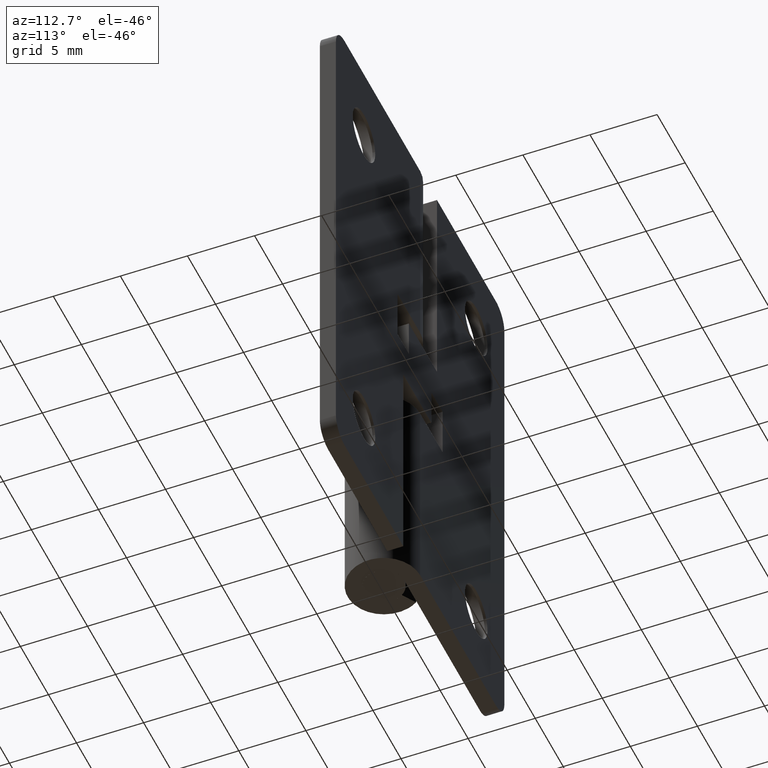
[diagram: clean part render]
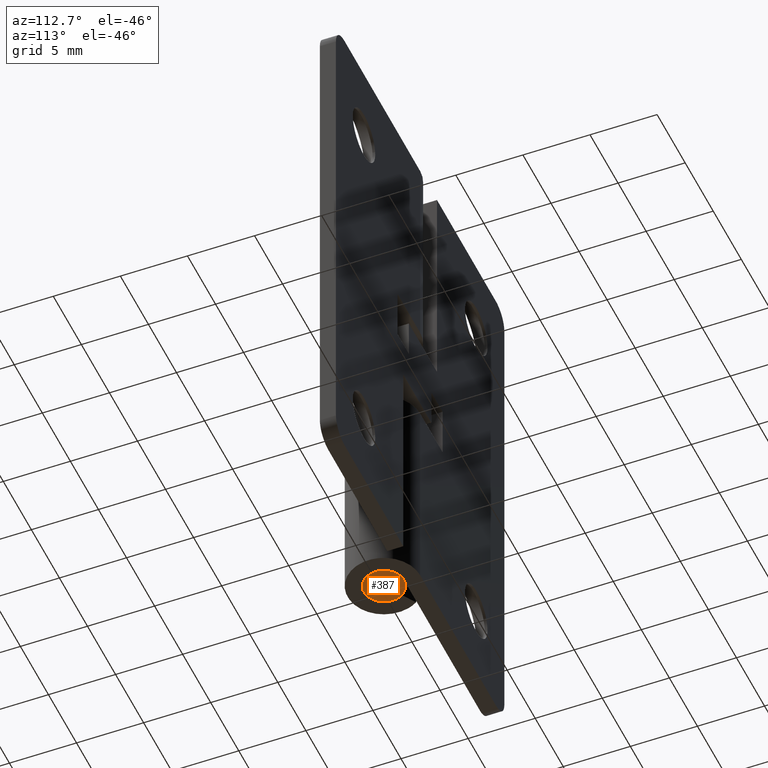
[diagram: same view with one face highlighted and labeled with its STEP entity id]
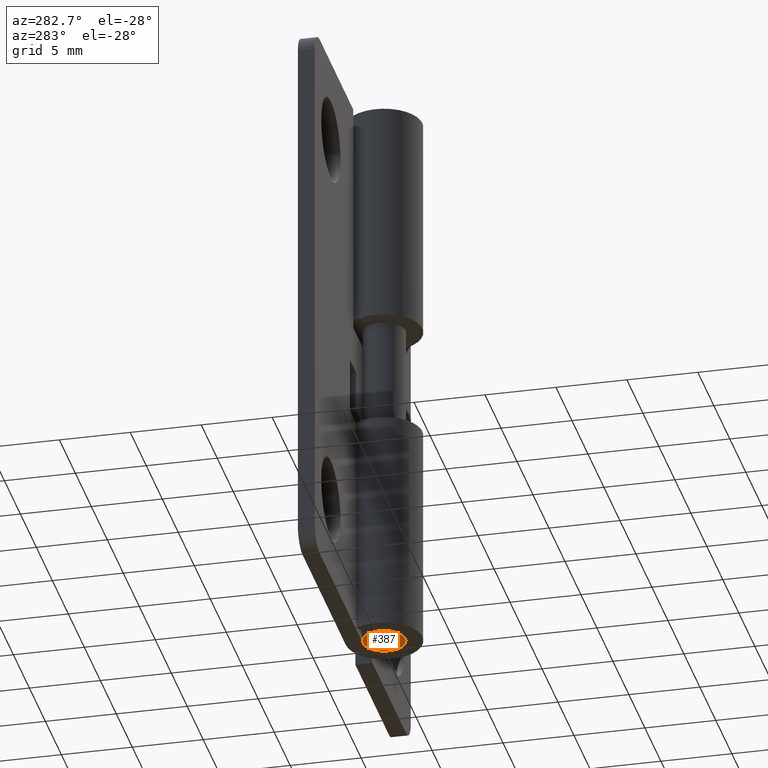
[diagram: same view with one face highlighted and labeled with its STEP entity id]
A machine part, auxiliary view. The second image highlights one B-rep face of the part: STEP entity #387.
A second angle (auxiliary view) of the same face is appended — the face is thin or edge-on in the first view.
In plain terms, the highlighted face is a freeform B-spline surface patch.
Its self-contained STEP definition (entity closure, byte-faithful):
#94=CARTESIAN_POINT('',(0.091572809322926,-1.497202197631653,8.326673E-016));
#95=VERTEX_POINT('',#94);
#101=CARTESIAN_POINT('',(1.500000000000115,0.0,0.0));
#102=VERTEX_POINT('',#101);
#103=CARTESIAN_POINT('',(1.500000000000115,0.0,0.0));
#104=CARTESIAN_POINT('',(1.500000000000115,-1.411059100319691,0.0));
#105=CARTESIAN_POINT('',(0.091572809322926,-1.497202197631653,8.326673E-016));
#113=(BOUNDED_CURVE()B_SPLINE_CURVE(2,(#103,#104,#105),.UNSPECIFIED.,.F.,.U.)B_SPLINE_CURVE_WITH_KNOTS((3,3),(0.500000000000000,0.739332962237213),.UNSPECIFIED.)CURVE()GEOMETRIC_REPRESENTATION_ITEM()RATIONAL_B_SPLINE_CURVE((1.0,0.719603993288737,0.976072041663010))REPRESENTATION_ITEM(''));
#114=EDGE_CURVE('',#102,#95,#113,.T.);
#116=CARTESIAN_POINT('',(1.404215368153057,0.527426961619445,7.962767E-016));
#117=VERTEX_POINT('',#116);
#118=CARTESIAN_POINT('',(1.404215368153056,0.527426961619445,7.962767E-016));
#119=CARTESIAN_POINT('',(1.500000000000115,0.272411079135523,0.0));
#120=CARTESIAN_POINT('',(1.500000000000115,0.0,0.0));
#128=(BOUNDED_CURVE()B_SPLINE_CURVE(2,(#118,#119,#120),.UNSPECIFIED.,.F.,.U.)B_SPLINE_CURVE_WITH_KNOTS((3,3),(0.440284170891700,0.500000000000000),.UNSPECIFIED.)CURVE()GEOMETRIC_REPRESENTATION_ITEM()RATIONAL_B_SPLINE_CURVE((0.893499554626943,0.930038554393424,1.0))REPRESENTATION_ITEM(''));
#129=EDGE_CURVE('',#117,#102,#128,.T.);
#179=CARTESIAN_POINT('',(-1.500000000000115,0.0,0.0));
#180=VERTEX_POINT('',#179);
#181=CARTESIAN_POINT('',(-1.500000000000115,0.0,0.0));
#182=CARTESIAN_POINT('',(-1.500000000000115,1.500000000000115,0.0));
#183=CARTESIAN_POINT('',(0.0,1.500000000000115,0.0));
#184=CARTESIAN_POINT('',(1.038914393491056,1.500000000000116,0.0));
#185=CARTESIAN_POINT('',(1.404215368153056,0.527426961619445,7.962767E-016));
#193=(BOUNDED_CURVE()B_SPLINE_CURVE(2,(#181,#182,#183,#184,#185),.UNSPECIFIED.,.F.,.U.)B_SPLINE_CURVE_WITH_KNOTS((3,2,3),(0.0,0.250000000000000,0.440284170891700),.UNSPECIFIED.)CURVE()GEOMETRIC_REPRESENTATION_ITEM()RATIONAL_B_SPLINE_CURVE((1.0,0.707106781186548,1.0,0.777068226793123,0.893499554626943))REPRESENTATION_ITEM(''));
#194=EDGE_CURVE('',#180,#117,#193,.T.);
#196=CARTESIAN_POINT('',(0.091572809322926,-1.497202197631653,8.326673E-016));
#197=CARTESIAN_POINT('',(0.045829144968579,-1.500000000000116,0.0));
#198=CARTESIAN_POINT('',(0.0,-1.500000000000115,0.0));
#199=CARTESIAN_POINT('',(-1.500000000000115,-1.500000000000115,0.0));
#200=CARTESIAN_POINT('',(-1.500000000000115,0.0,0.0));
#208=(BOUNDED_CURVE()B_SPLINE_CURVE(2,(#196,#197,#198,#199,#200),.UNSPECIFIED.,.F.,.U.)B_SPLINE_CURVE_WITH_KNOTS((3,2,3),(0.739332962237212,0.750000000000000,1.0),.UNSPECIFIED.)CURVE()GEOMETRIC_REPRESENTATION_ITEM()RATIONAL_B_SPLINE_CURVE((0.976072041663009,0.987502787897810,1.0,0.707106781186548,1.0))REPRESENTATION_ITEM(''));
#209=EDGE_CURVE('',#95,#180,#208,.T.);
#376=CARTESIAN_POINT('',(-1.649849994185544,-1.649813431928188,0.0));
#377=CARTESIAN_POINT('',(1.649850074651815,-1.649813431928188,0.0));
#378=CARTESIAN_POINT('',(-1.649849994185544,1.649821585843593,0.0));
#379=CARTESIAN_POINT('',(1.649850074651815,1.649821585843593,0.0));
#380=B_SPLINE_SURFACE_WITH_KNOTS('',1,1,((#376,#378),(#377,#379)),.UNSPECIFIED.,.F.,.F.,.U.,(2,2),(2,2),(0.0,3.299700068837359),(0.0,3.299635017771781),.UNSPECIFIED.);
#381=ORIENTED_EDGE('',*,*,#194,.T.);
#382=ORIENTED_EDGE('',*,*,#129,.T.);
#383=ORIENTED_EDGE('',*,*,#114,.T.);
#384=ORIENTED_EDGE('',*,*,#209,.T.);
#385=EDGE_LOOP('',(#381,#382,#383,#384));
#386=FACE_OUTER_BOUND('',#385,.T.);
#387=ADVANCED_FACE('',(#386),#380,.F.);